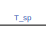
[diagram: root canvas - part 1/5, top center region]
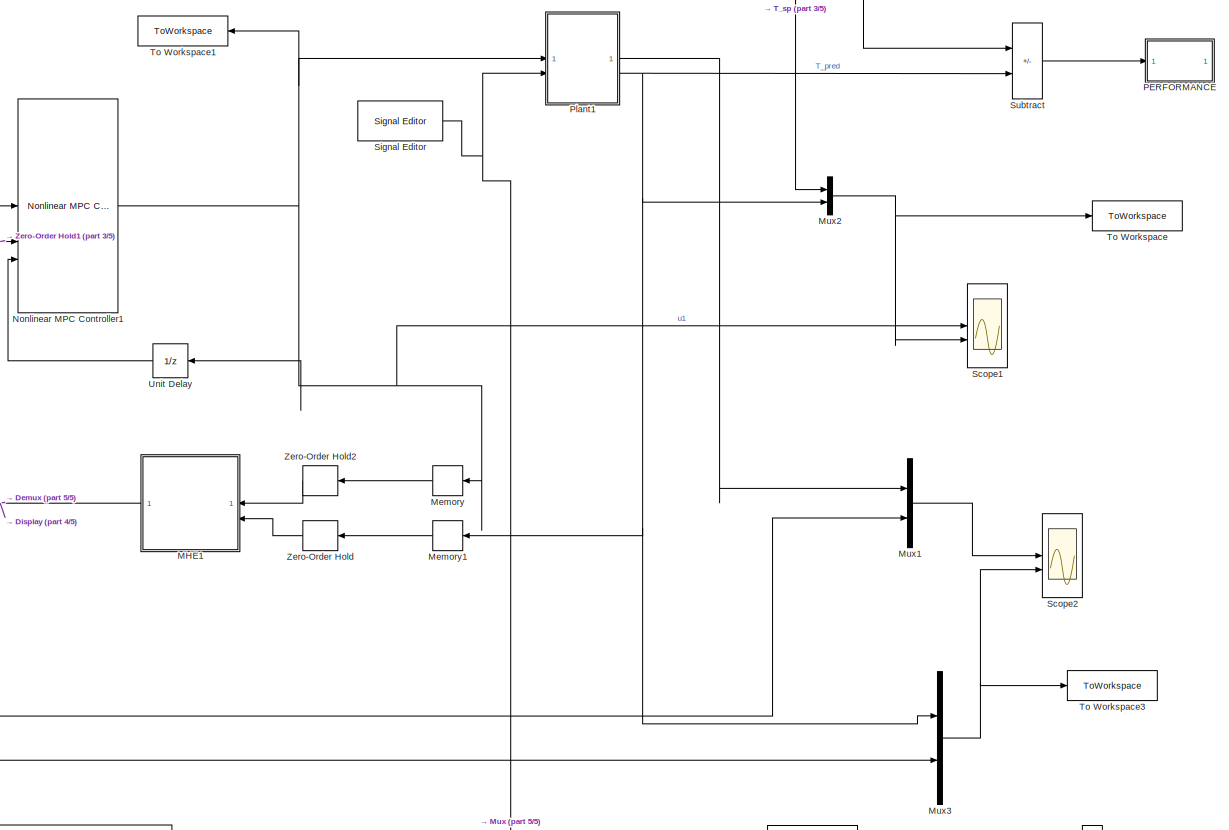
[diagram: root canvas - part 2/5, central region]
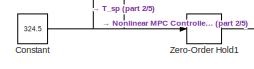
[diagram: root canvas - part 3/5, middle left region]
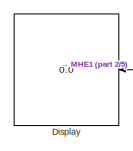
[diagram: root canvas - part 4/5, middle left region]
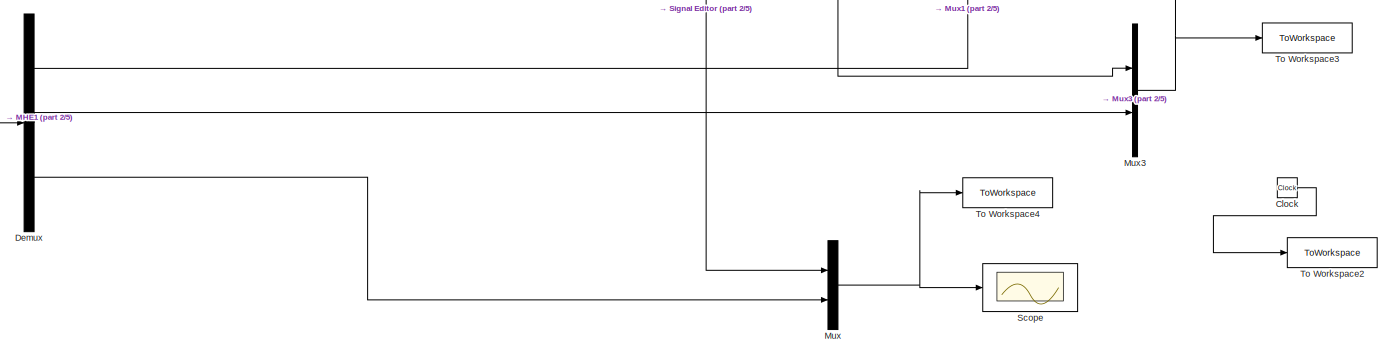
[diagram: root canvas - part 5/5, full width, bottom band]
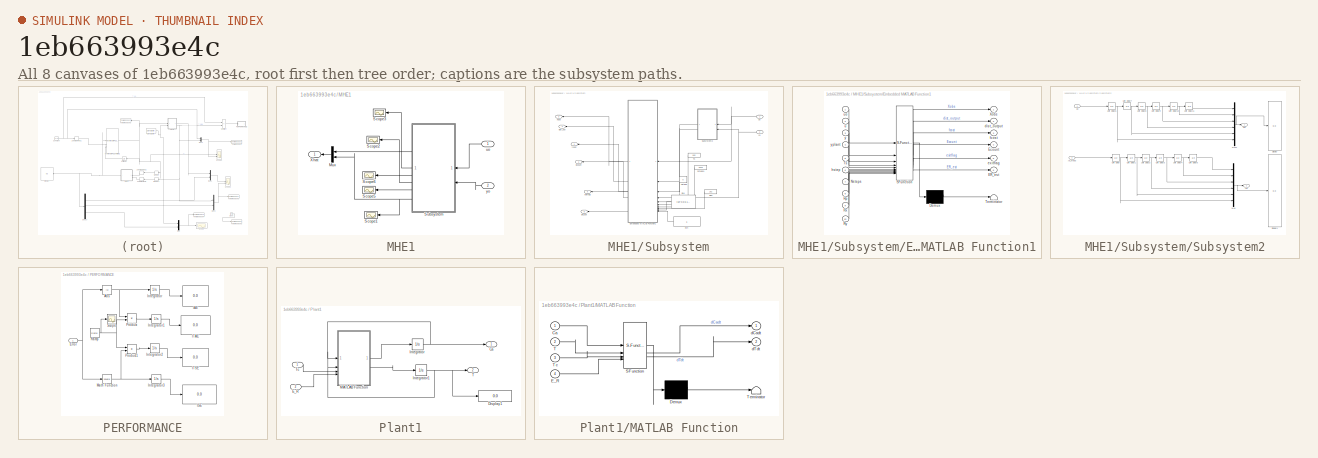
[diagram: thumbnail index - all 8 canvases of the model, root first then tree order]
MODEL slx_1eb663993e4c
KIND model
CONFIG AbsTol = auto
CONFIG EnableMultiTasking = off
CONFIG FixedStep = auto
CONFIG MaxStep = auto
CONFIG MinStep = auto
CONFIG RelTol = 1e-3
CONFIG SampleTimeConstraint = Unconstrained
CONFIG SolverName = VariableStepAuto
CONFIG StartTime = 0.0
CONFIG StopTime = 30
BLOCK [Clock] Clock
BLOCK [Constant] Constant
  Value = 324.5
BLOCK [Demux] Demux
  Outputs = 3
BLOCK [Display] Display
  Decimation = 1
BLOCK [SubSystem] MHE1
BLOCK [Mux] MHE1/Mux
  DisplayOption = bar
  Inputs = 2
BLOCK [Scope] MHE1/Scope1
  Floating = off
  NumInputPorts = 1
  ScopeSpecificationString = Simulink.scopes.TimeScopeBlockCfg('CurrentConfiguration', extmgr.ConfigurationSet(extmgr.Configuration('Core','General UI',true),extmgr.Configuration('Core','Source UI',true),extmgr.Configuration('Sources','WiredSimulink',true,'DataLoggingVariableName','ScopeData1'),extmgr.Configuration('Visuals','Time Domain',true,'SerializedDisplays',{struct('MinYLimReal','8749.54372','MaxYLimReal','8754.10801',...<+1397ch>
BLOCK [Scope] MHE1/Scope2
  Floating = off
  NumInputPorts = 1
  ScopeSpecificationString = Simulink.scopes.TimeScopeBlockCfg('CurrentConfiguration', extmgr.ConfigurationSet(extmgr.Configuration('Core','General UI',true),extmgr.Configuration('Core','Source UI',true),extmgr.Configuration('Sources','WiredSimulink',true,'DataLoggingVariableName','ScopeData3'),extmgr.Configuration('Visuals','Time Domain',true,'SerializedDisplays',{struct('MinYLimReal','0.00304','MaxYLimReal','0.03508','YLabe...<+1373ch>
BLOCK [Scope] MHE1/Scope3
  Floating = off
  NumInputPorts = 1
  ScopeSpecificationString = Simulink.scopes.TimeScopeBlockCfg('CurrentConfiguration', extmgr.ConfigurationSet(extmgr.Configuration('Core','General UI',true),extmgr.Configuration('Core','Source UI',true),extmgr.Configuration('Sources','WiredSimulink',true,'DataLoggingVariableName','ScopeData4'),extmgr.Configuration('Visuals','Time Domain',true,'SerializedDisplays',{struct('MinYLimReal','-2.70623','MaxYLimReal','24.35605','YLa...<+1378ch>
BLOCK [Scope] MHE1/Scope5
  Floating = off
  NumInputPorts = 1
  ScopeSpecificationString = Simulink.scopes.TimeScopeBlockCfg('CurrentConfiguration', extmgr.ConfigurationSet(extmgr.Configuration('Core','General UI',true),extmgr.Configuration('Core','Source UI',true),extmgr.Configuration('Sources','WiredSimulink',true,'DataLoggingVariableName','ScopeData2'),extmgr.Configuration('Visuals','Time Domain',true,'SerializedDisplays',{struct('MinYLimReal','1.00000','MaxYLimReal','3.00000','YLabe...<+1375ch>
BLOCK [Scope] MHE1/Scope6
  Floating = off
  NumInputPorts = 1
  ScopeSpecificationString = Simulink.scopes.TimeScopeBlockCfg('CurrentConfiguration', extmgr.ConfigurationSet(extmgr.Configuration('Core','General UI',true),extmgr.Configuration('Core','Source UI',true),extmgr.Configuration('Sources','WiredSimulink',true,'DataLoggingVariableName','ScopeData2'),extmgr.Configuration('Visuals','Time Domain',true,'SerializedDisplays',{struct('MinYLimReal','-0.14289','MaxYLimReal','0.16211','YLab...<+1408ch>
BLOCK [SubSystem] MHE1/Subsystem
BLOCK [Outport] MHE1/Subsystem/ER_est
  Port = 6
  VectorParamsAs1DForOutWhenUnconnected = off
BLOCK [Outport] MHE1/Subsystem/Ecount
  Port = 2
  VectorParamsAs1DForOutWhenUnconnected = off
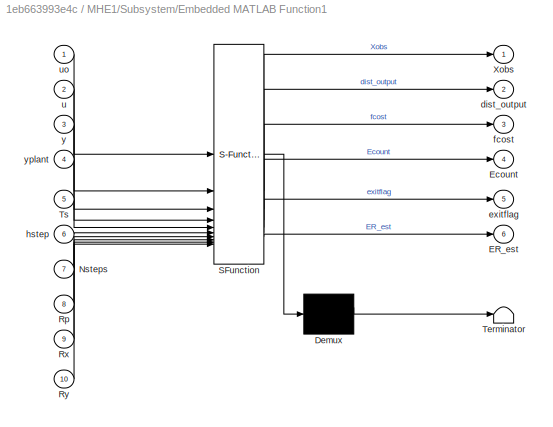
BLOCK [SubSystem] MHE1/Subsystem/Embedded MATLAB Function1
  ErrorFcn = Stateflow.Translate.translate
  PermitHierarchicalResolution = ExplicitOnly
  SFBlockType = MATLAB Function
  TreatAsAtomicUnit = on
BLOCK [Demux] MHE1/Subsystem/Embedded MATLAB Function1/ Demux 
  Outputs = 1
BLOCK [S-Function] MHE1/Subsystem/Embedded MATLAB Function1/ SFunction 
  EnableBusSupport = on
  FunctionName = sf_sfun
  PortCounts = [10 7]
  SFcnIsStateOwnerBlock = off
  SFunctionDeploymentMode = off
  Tag = Stateflow S-Function 1
BLOCK [Terminator] MHE1/Subsystem/Embedded MATLAB Function1/ Terminator 
BLOCK [Outport] MHE1/Subsystem/Embedded MATLAB Function1/ER_est
  Port = 6
BLOCK [Outport] MHE1/Subsystem/Embedded MATLAB Function1/Ecount
  Port = 4
  VectorParamsAs1DForOutWhenUnconnected = off
BLOCK [Inport] MHE1/Subsystem/Embedded MATLAB Function1/Nsteps
  Port = 7
BLOCK [Inport] MHE1/Subsystem/Embedded MATLAB Function1/Rp
  Port = 8
BLOCK [Inport] MHE1/Subsystem/Embedded MATLAB Function1/Rx
  Port = 9
BLOCK [Inport] MHE1/Subsystem/Embedded MATLAB Function1/Ry
  Port = 10
BLOCK [Inport] MHE1/Subsystem/Embedded MATLAB Function1/Ts
  Port = 5
BLOCK [Outport] MHE1/Subsystem/Embedded MATLAB Function1/Xobs
  VectorParamsAs1DForOutWhenUnconnected = off
BLOCK [Outport] MHE1/Subsystem/Embedded MATLAB Function1/dist_output
  Port = 2
BLOCK [Outport] MHE1/Subsystem/Embedded MATLAB Function1/exitflag
  Port = 5
BLOCK [Outport] MHE1/Subsystem/Embedded MATLAB Function1/fcost
  Port = 3
  VectorParamsAs1DForOutWhenUnconnected = off
BLOCK [Inport] MHE1/Subsystem/Embedded MATLAB Function1/hstep
  Port = 6
BLOCK [Inport] MHE1/Subsystem/Embedded MATLAB Function1/u
  Port = 2
BLOCK [Inport] MHE1/Subsystem/Embedded MATLAB Function1/uo
BLOCK [Inport] MHE1/Subsystem/Embedded MATLAB Function1/y
  Port = 3
BLOCK [Inport] MHE1/Subsystem/Embedded MATLAB Function1/yplant
  Port = 4
BLOCK [Constant] MHE1/Subsystem/Nsteps
  Value = 5
BLOCK [Constant] MHE1/Subsystem/Rp2
  Value = 1e2
BLOCK [Constant] MHE1/Subsystem/Rx4
  Value = [1e-4,0;0,1e-6]
BLOCK [Constant] MHE1/Subsystem/Ry4
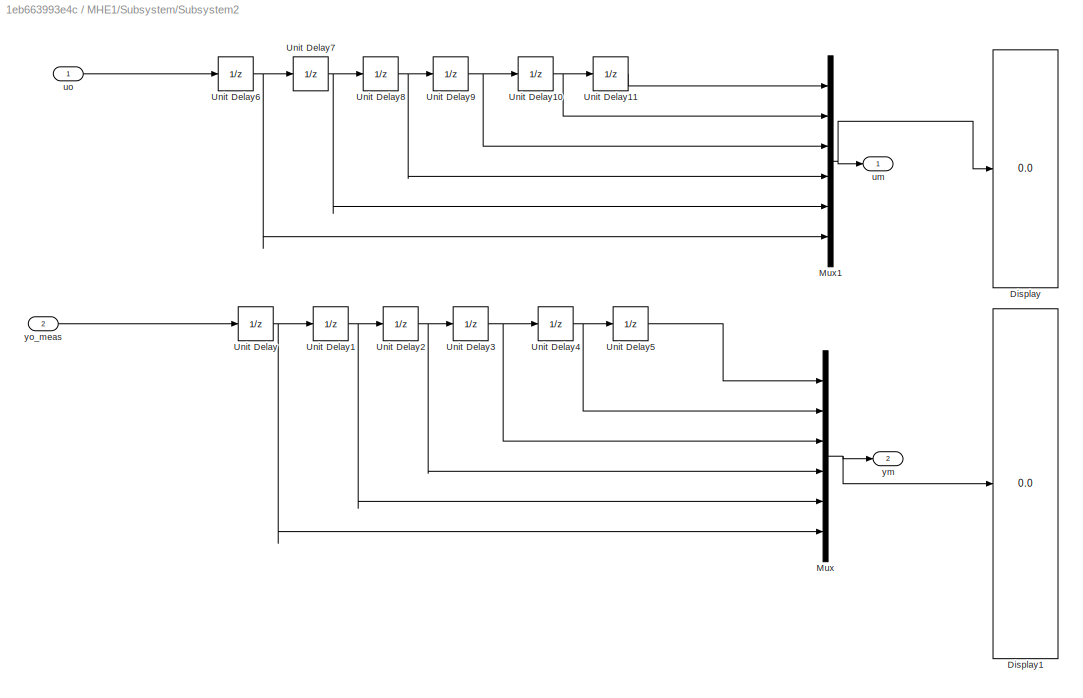
BLOCK [SubSystem] MHE1/Subsystem/Subsystem2
BLOCK [Display] MHE1/Subsystem/Subsystem2/Display
  Decimation = 1
BLOCK [Display] MHE1/Subsystem/Subsystem2/Display1
  Decimation = 1
BLOCK [Mux] MHE1/Subsystem/Subsystem2/Mux
  DisplayOption = bar
  Inputs = 6
BLOCK [Mux] MHE1/Subsystem/Subsystem2/Mux1
  DisplayOption = bar
  Inputs = 6
BLOCK [UnitDelay] MHE1/Subsystem/Subsystem2/Unit Delay
  HasFrameUpgradeWarning = on
  InitialCondition = 324.5
  SampleTime = Ts
BLOCK [UnitDelay] MHE1/Subsystem/Subsystem2/Unit Delay1
  HasFrameUpgradeWarning = on
  InitialCondition = 324.5
  SampleTime = Ts
BLOCK [UnitDelay] MHE1/Subsystem/Subsystem2/Unit Delay10
  HasFrameUpgradeWarning = on
  InitialCondition = 300
  SampleTime = Ts
BLOCK [UnitDelay] MHE1/Subsystem/Subsystem2/Unit Delay11
  HasFrameUpgradeWarning = on
  InitialCondition = 300
  SampleTime = Ts
BLOCK [UnitDelay] MHE1/Subsystem/Subsystem2/Unit Delay2
  HasFrameUpgradeWarning = on
  InitialCondition = 324.5
  SampleTime = Ts
BLOCK [UnitDelay] MHE1/Subsystem/Subsystem2/Unit Delay3
  HasFrameUpgradeWarning = on
  InitialCondition = 324.5
  SampleTime = Ts
BLOCK [UnitDelay] MHE1/Subsystem/Subsystem2/Unit Delay4
  HasFrameUpgradeWarning = on
  InitialCondition = 324.5
  SampleTime = Ts
BLOCK [UnitDelay] MHE1/Subsystem/Subsystem2/Unit Delay5
  HasFrameUpgradeWarning = on
  InitialCondition = 324.5
  SampleTime = Ts
BLOCK [UnitDelay] MHE1/Subsystem/Subsystem2/Unit Delay6
  HasFrameUpgradeWarning = on
  InitialCondition = 300
  SampleTime = Ts
BLOCK [UnitDelay] MHE1/Subsystem/Subsystem2/Unit Delay7
  HasFrameUpgradeWarning = on
  InitialCondition = 300
  SampleTime = Ts
BLOCK [UnitDelay] MHE1/Subsystem/Subsystem2/Unit Delay8
  HasFrameUpgradeWarning = on
  InitialCondition = 300
  SampleTime = Ts
BLOCK [UnitDelay] MHE1/Subsystem/Subsystem2/Unit Delay9
  HasFrameUpgradeWarning = on
  InitialCondition = 300
  SampleTime = Ts
BLOCK [Outport] MHE1/Subsystem/Subsystem2/um
  VectorParamsAs1DForOutWhenUnconnected = off
BLOCK [Inport] MHE1/Subsystem/Subsystem2/uo
BLOCK [Outport] MHE1/Subsystem/Subsystem2/ym
  Port = 2
  VectorParamsAs1DForOutWhenUnconnected = off
BLOCK [Inport] MHE1/Subsystem/Subsystem2/yo_meas
  Port = 2
BLOCK [Constant] MHE1/Subsystem/Ts
  Value = 0.05
BLOCK [Outport] MHE1/Subsystem/Xobs
  Port = 3
  VectorParamsAs1DForOutWhenUnconnected = off
BLOCK [Outport] MHE1/Subsystem/dist_out
  Port = 4
  VectorParamsAs1DForOutWhenUnconnected = off
BLOCK [Outport] MHE1/Subsystem/exitflag
  Port = 5
  VectorParamsAs1DForOutWhenUnconnected = off
BLOCK [Outport] MHE1/Subsystem/fcost
  VectorParamsAs1DForOutWhenUnconnected = off
BLOCK [Constant] MHE1/Subsystem/hsteps1
  Value = 0.028
BLOCK [Inport] MHE1/Subsystem/uo
BLOCK [Inport] MHE1/Subsystem/yo
  Port = 2
BLOCK [Outport] MHE1/Xhat
BLOCK [Inport] MHE1/uo
BLOCK [Inport] MHE1/yo
  Port = 2
BLOCK [Memory] Memory
  InitialCondition = 300
BLOCK [Memory] Memory1
  InitialCondition = 324.5
BLOCK [Mux] Mux
  DisplayOption = bar
  Inputs = 2
BLOCK [Mux] Mux1
  DisplayOption = bar
  Inputs = 2
BLOCK [Mux] Mux2
  DisplayOption = bar
  Inputs = 2
BLOCK [Mux] Mux3
  DisplayOption = bar
  Inputs = 2
BLOCK [Reference] Nonlinear MPC Controller1  REF=mpclib/Nonlinear MPC Controller  (lib defined in mdl_ae329e0e0455)
  SourceBlock = mpclib/Nonlinear MPC Controller
  SourceType = NonlinearMPC
BLOCK [SubSystem] PERFORMANCE
BLOCK [Abs] PERFORMANCE/Abs
  SaturateOnIntegerOverflow = off
BLOCK [Inport] PERFORMANCE/Error
BLOCK [Display] PERFORMANCE/IAE
  Decimation = 1
BLOCK [Display] PERFORMANCE/ISE
  Decimation = 1
BLOCK [Display] PERFORMANCE/ITAE
  Decimation = 1
BLOCK [Display] PERFORMANCE/ITSE
  Decimation = 1
BLOCK [Integrator] PERFORMANCE/Integrator
BLOCK [Integrator] PERFORMANCE/Integrator1
BLOCK [Integrator] PERFORMANCE/Integrator2
BLOCK [Integrator] PERFORMANCE/Integrator3
BLOCK [Math] PERFORMANCE/Math Function
  Operator = square
  SignedPower = on
BLOCK [Product] PERFORMANCE/Product
  RndMeth = Zero
BLOCK [Product] PERFORMANCE/Product1
  RndMeth = Zero
BLOCK [Reference] PERFORMANCE/Ramp  REF=simulink/Sources/Ramp
  SourceBlock = simulink/Sources/Ramp
  SourceType = Ramp
BLOCK [Scope] PERFORMANCE/Scope
  Floating = off
  NumInputPorts = 1
  ScopeSpecificationString = Simulink.scopes.TimeScopeBlockCfg('CurrentConfiguration', extmgr.ConfigurationSet(extmgr.Configuration('Core','General UI',true),extmgr.Configuration('Core','Source UI',true),extmgr.Configuration('Sources','WiredSimulink',true,'DataLoggingLimitDataPoints',true,'DataLoggingSaveFormat','Array','DataLoggingDecimation','1','DataLoggingDecimateData',true),extmgr.Configuration('Visuals','Time Domain',tr...<+878ch>
BLOCK [SubSystem] Plant1
BLOCK [Outport] Plant1/Ca
BLOCK [Display] Plant1/Display1
  Decimation = 1
BLOCK [Inport] Plant1/E_R
  Port = 2
BLOCK [Integrator] Plant1/Integrator
  InitialCondition = 0.877
BLOCK [Integrator] Plant1/Integrator1
  InitialCondition = 324.5
BLOCK [SubSystem] Plant1/MATLAB Function
  ErrorFcn = Stateflow.Translate.translate
  PermitHierarchicalResolution = ExplicitOnly
  SFBlockType = MATLAB Function
  TreatAsAtomicUnit = on
BLOCK [Demux] Plant1/MATLAB Function/ Demux 
  Outputs = 1
BLOCK [S-Function] Plant1/MATLAB Function/ SFunction 
  EnableBusSupport = on
  FunctionName = sf_sfun
  PortCounts = [4 3]
  SFcnIsStateOwnerBlock = off
  SFunctionDeploymentMode = off
  Tag = Stateflow S-Function 3
BLOCK [Terminator] Plant1/MATLAB Function/ Terminator 
BLOCK [Inport] Plant1/MATLAB Function/Ca
BLOCK [Inport] Plant1/MATLAB Function/E_R
  Port = 4
BLOCK [Inport] Plant1/MATLAB Function/T
  Port = 2
BLOCK [Inport] Plant1/MATLAB Function/Tc
  Port = 3
BLOCK [Outport] Plant1/MATLAB Function/dCadt
BLOCK [Outport] Plant1/MATLAB Function/dTdt
  Port = 2
BLOCK [Outport] Plant1/T
  Port = 2
BLOCK [Inport] Plant1/Tc
BLOCK [Scope] Scope
  Floating = off
  NumInputPorts = 1
  ScopeSpecificationString = Simulink.scopes.TimeScopeBlockCfg('CurrentConfiguration', extmgr.ConfigurationSet(extmgr.Configuration('Core','General UI',true),extmgr.Configuration('Core','Source UI',true),extmgr.Configuration('Sources','WiredSimulink',true,'DataLoggingVariableName','ScopeData1'),extmgr.Configuration('Visuals','Time Domain',true,'SerializedDisplays',{struct('MinYLimReal','8611.9566','MaxYLimReal','8765.42304','...<+1400ch>
BLOCK [Scope] Scope1
  Floating = off
  NumInputPorts = 2
  ScopeSpecificationString = Simulink.scopes.TimeScopeBlockCfg('CurrentConfiguration', extmgr.ConfigurationSet(extmgr.Configuration('Core','General UI',true),extmgr.Configuration('Core','Source UI',true),extmgr.Configuration('Sources','WiredSimulink',true,'DataLoggingVariableName','ScopeData1'),extmgr.Configuration('Visuals','Time Domain',true,'SerializedDisplays',{struct('MinYLimReal','293.43394','MaxYLimReal','300.77501','Y...<+2010ch>
BLOCK [Scope] Scope2
  Floating = off
  NumInputPorts = 2
  ScopeSpecificationString = Simulink.scopes.TimeScopeBlockCfg('CurrentConfiguration', extmgr.ConfigurationSet(extmgr.Configuration('Core','General UI',true),extmgr.Configuration('Core','Source UI',true),extmgr.Configuration('Sources','WiredSimulink',true,'DataLoggingVariableName','ScopeData1'),extmgr.Configuration('Visuals','Time Domain',true,'SerializedDisplays',{struct('MinYLimReal','0.81717','MaxYLimReal','0.88493','YLabe...<+2036ch>
BLOCK [Reference] Signal Editor  REF=SignalEditorBlockLib/Signal Editor
  LibrarySourceBlock = simulink/Sources/Signal Editor
  SourceBlock = SignalEditorBlockLib/Signal Editor
  SourceType = SignalEditor
  UserDataPersistent = on
BLOCK [Sum] Subtract
  IconShape = rectangular
  Inputs = +-
BLOCK [ToWorkspace] To Workspace
  FixptAsFi = on
  MaxDataPoints = inf
  SampleTime = Ts
  SaveFormat = Timeseries
  VariableName = T
BLOCK [ToWorkspace] To Workspace1
  FixptAsFi = on
  MaxDataPoints = inf
  SampleTime = Ts
  SaveFormat = Timeseries
  VariableName = Tc
BLOCK [ToWorkspace] To Workspace2
  FixptAsFi = on
  MaxDataPoints = inf
  SampleTime = Ts
  SaveFormat = Timeseries
  VariableName = t_save
BLOCK [ToWorkspace] To Workspace3
  FixptAsFi = on
  MaxDataPoints = inf
  SampleTime = Ts
  SaveFormat = Timeseries
  VariableName = est
BLOCK [ToWorkspace] To Workspace4
  FixptAsFi = on
  MaxDataPoints = inf
  SampleTime = Ts
  SaveFormat = Timeseries
  VariableName = state
BLOCK [UnitDelay] Unit Delay
  HasFrameUpgradeWarning = on
  InitialCondition = u0
  SampleTime = -1
BLOCK [ZeroOrderHold] Zero-Order Hold
  SampleTime = Ts
BLOCK [ZeroOrderHold] Zero-Order Hold1
  SampleTime = Ts
BLOCK [ZeroOrderHold] Zero-Order Hold2
  SampleTime = Ts
LINE Clock:1 -> To Workspace2:1
NET Constant:1 -> Mux2:1, Subtract:1, Zero-Order Hold1:1
LINE Demux:1 -> Mux1:2
LINE Demux:2 -> Mux3:2
LINE Demux:3 -> Mux:2
LINE MHE1/Mux:1 -> MHE1/Xhat:1
LINE MHE1/Subsystem/Embedded MATLAB Function1:1 -> MHE1/Subsystem/Xobs:1
LINE MHE1/Subsystem/Embedded MATLAB Function1:2 -> MHE1/Subsystem/dist_out:1
LINE MHE1/Subsystem/Embedded MATLAB Function1:3 -> MHE1/Subsystem/fcost:1
LINE MHE1/Subsystem/Embedded MATLAB Function1:4 -> MHE1/Subsystem/Ecount:1
LINE MHE1/Subsystem/Embedded MATLAB Function1:5 -> MHE1/Subsystem/exitflag:1
LINE MHE1/Subsystem/Embedded MATLAB Function1:6 -> MHE1/Subsystem/ER_est:1
LINE MHE1/Subsystem/Nsteps:1 -> MHE1/Subsystem/Embedded MATLAB Function1:7
LINE MHE1/Subsystem/Rp2:1 -> MHE1/Subsystem/Embedded MATLAB Function1:8
LINE MHE1/Subsystem/Rx4:1 -> MHE1/Subsystem/Embedded MATLAB Function1:9
LINE MHE1/Subsystem/Ry4:1 -> MHE1/Subsystem/Embedded MATLAB Function1:10
NET MHE1/Subsystem/Subsystem2/Mux1:1 -> MHE1/Subsystem/Subsystem2/Display:1, MHE1/Subsystem/Subsystem2/um:1
NET MHE1/Subsystem/Subsystem2/Mux:1 -> MHE1/Subsystem/Subsystem2/Display1:1, MHE1/Subsystem/Subsystem2/ym:1
NET MHE1/Subsystem/Subsystem2/Unit Delay10:1 -> MHE1/Subsystem/Subsystem2/Mux1:2, MHE1/Subsystem/Subsystem2/Unit Delay11:1
LINE MHE1/Subsystem/Subsystem2/Unit Delay11:1 -> MHE1/Subsystem/Subsystem2/Mux1:1
NET MHE1/Subsystem/Subsystem2/Unit Delay1:1 -> MHE1/Subsystem/Subsystem2/Mux:5, MHE1/Subsystem/Subsystem2/Unit Delay2:1
NET MHE1/Subsystem/Subsystem2/Unit Delay2:1 -> MHE1/Subsystem/Subsystem2/Mux:4, MHE1/Subsystem/Subsystem2/Unit Delay3:1
NET MHE1/Subsystem/Subsystem2/Unit Delay3:1 -> MHE1/Subsystem/Subsystem2/Mux:3, MHE1/Subsystem/Subsystem2/Unit Delay4:1
NET MHE1/Subsystem/Subsystem2/Unit Delay4:1 -> MHE1/Subsystem/Subsystem2/Mux:2, MHE1/Subsystem/Subsystem2/Unit Delay5:1
LINE MHE1/Subsystem/Subsystem2/Unit Delay5:1 -> MHE1/Subsystem/Subsystem2/Mux:1
NET MHE1/Subsystem/Subsystem2/Unit Delay6:1 -> MHE1/Subsystem/Subsystem2/Mux1:6, MHE1/Subsystem/Subsystem2/Unit Delay7:1
NET MHE1/Subsystem/Subsystem2/Unit Delay7:1 -> MHE1/Subsystem/Subsystem2/Mux1:5, MHE1/Subsystem/Subsystem2/Unit Delay8:1
NET MHE1/Subsystem/Subsystem2/Unit Delay8:1 -> MHE1/Subsystem/Subsystem2/Mux1:4, MHE1/Subsystem/Subsystem2/Unit Delay9:1
NET MHE1/Subsystem/Subsystem2/Unit Delay9:1 -> MHE1/Subsystem/Subsystem2/Mux1:3, MHE1/Subsystem/Subsystem2/Unit Delay10:1
NET MHE1/Subsystem/Subsystem2/Unit Delay:1 -> MHE1/Subsystem/Subsystem2/Mux:6, MHE1/Subsystem/Subsystem2/Unit Delay1:1
LINE MHE1/Subsystem/Subsystem2/uo:1 -> MHE1/Subsystem/Subsystem2/Unit Delay6:1
LINE MHE1/Subsystem/Subsystem2/yo_meas:1 -> MHE1/Subsystem/Subsystem2/Unit Delay:1
LINE MHE1/Subsystem/Subsystem2:1 -> MHE1/Subsystem/Embedded MATLAB Function1:2
LINE MHE1/Subsystem/Subsystem2:2 -> MHE1/Subsystem/Embedded MATLAB Function1:3
LINE MHE1/Subsystem/Ts:1 -> MHE1/Subsystem/Embedded MATLAB Function1:5
LINE MHE1/Subsystem/hsteps1:1 -> MHE1/Subsystem/Embedded MATLAB Function1:6
NET MHE1/Subsystem/uo:1 -> MHE1/Subsystem/Embedded MATLAB Function1:1, MHE1/Subsystem/Subsystem2:1
NET MHE1/Subsystem/yo:1 -> MHE1/Subsystem/Embedded MATLAB Function1:4, MHE1/Subsystem/Subsystem2:2
LINE MHE1/Subsystem:1 -> MHE1/Scope3:1
LINE MHE1/Subsystem:2 -> MHE1/Scope2:1
LINE MHE1/Subsystem:3 -> MHE1/Mux:1
LINE MHE1/Subsystem:4 -> MHE1/Scope6:1
LINE MHE1/Subsystem:5 -> MHE1/Scope5:1
NET MHE1/Subsystem:6 -> MHE1/Mux:2, MHE1/Scope1:1
LINE MHE1/uo:1 -> MHE1/Subsystem:1
LINE MHE1/yo:1 -> MHE1/Subsystem:2
NET MHE1:1 -> Demux:1, Display:1, Nonlinear MPC Controller1:1
LINE Memory1:1 -> Zero-Order Hold:1
LINE Memory:1 -> Zero-Order Hold2:1
LINE Mux1:1 -> Scope2:1
NET Mux2:1 -> Scope1:2, To Workspace:1
NET Mux3:1 -> Scope2:2, To Workspace3:1
NET Mux:1 -> Scope:1, To Workspace4:1
NET Nonlinear MPC Controller1:1 -> Memory:1, Plant1:1, Scope1:1, To Workspace1:1, Unit Delay:1
NET PERFORMANCE/Abs:1 -> PERFORMANCE/Integrator:1, PERFORMANCE/Product:1
NET PERFORMANCE/Error:1 -> PERFORMANCE/Abs:1, PERFORMANCE/Math Function:1
LINE PERFORMANCE/Integrator1:1 -> PERFORMANCE/ITAE:1
LINE PERFORMANCE/Integrator2:1 -> PERFORMANCE/ITSE:1
LINE PERFORMANCE/Integrator3:1 -> PERFORMANCE/ISE:1
LINE PERFORMANCE/Integrator:1 -> PERFORMANCE/IAE:1
NET PERFORMANCE/Math Function:1 -> PERFORMANCE/Integrator3:1, PERFORMANCE/Product1:2
LINE PERFORMANCE/Product1:1 -> PERFORMANCE/Integrator2:1
LINE PERFORMANCE/Product:1 -> PERFORMANCE/Integrator1:1
NET PERFORMANCE/Ramp:1 -> PERFORMANCE/Product1:1, PERFORMANCE/Product:2, PERFORMANCE/Scope:1
LINE Plant1/E_R:1 -> Plant1/MATLAB Function:4
NET Plant1/Integrator1:1 -> Plant1/Display1:1, Plant1/MATLAB Function:2, Plant1/T:1
NET Plant1/Integrator:1 -> Plant1/Ca:1, Plant1/MATLAB Function:1
LINE Plant1/MATLAB Function:1 -> Plant1/Integrator:1
LINE Plant1/MATLAB Function:2 -> Plant1/Integrator1:1
LINE Plant1/Tc:1 -> Plant1/MATLAB Function:3
LINE Plant1:1 -> Mux1:1
NET Plant1:2 -> Memory1:1, Mux2:2, Mux3:1, Subtract:2
NET Signal Editor:1 -> Mux:1, Plant1:2
LINE Subtract:1 -> PERFORMANCE:1
LINE Unit Delay:1 -> Nonlinear MPC Controller1:3
LINE Zero-Order Hold1:1 -> Nonlinear MPC Controller1:2
LINE Zero-Order Hold2:1 -> MHE1:1
LINE Zero-Order Hold:1 -> MHE1:2
note: NET lines group one-source signal fan-out (src -> all destinations, sorted); 1:1 wires keep LINE
CHART MHE1/Subsystem/Embedded
MATLAB Function1 states=1 transitions=1
  STATE_LABEL 'eML_blk_kernel()'
  STATE_LABEL "SCRIPT:\nfunction [Xobs,dist_output,fcost,Ecount,exitflag,ER_est] =MHE(uo,u,y,yplant,Ts,hstep,Nsteps,Rp,Rx,Ry)\n\n%#codegen\ncoder.extrinsic('MHE_compute','clear_var');\n\num=[u(1),u(2),u(3),u(4),u(5),u(6)] ;\n \n\nymeas=[y(1),y(2),y(3),y(4),y(5),y(6)] ;\n\n\n    \n   \n\n% SAMPLING TIME FOR DISCRETIZATION\n%hstep=1; %sampling time of 10 is with less interation while 5 is smoother but higher interaction\n%Nsteps=1...<+812ch>"
CHART Plant1/MATLAB Function states=1 transitions=1
  STATE_LABEL 'eML_blk_kernel()'
  STATE_LABEL 'SCRIPT:\nfunction [dCadt,dTdt] = fcn(Ca,T,Tc,E_R)\n\nvalues = {100,5e4,350,100,1000,0.239,7.2e10,5e4,1};\n[F,delta_H,Tf,V,rho,Cp,k0,U_A,Caf] = values{:};\n\n% Rate constant (Arrhenius equation)\n        k = k0 * exp(-E_R / T);\n        \n        % Mass balance for Ca\n        dCadt = F/V * (Caf - Ca) - k * Ca;\n        \n        % Energy balance for T\n        dTdt = F/V * (Tf - T) + (delta_H / (rho * Cp)) * k...<+49ch>'
CHART  states=0 transitions=0
CHART  states=0 transitions=0
